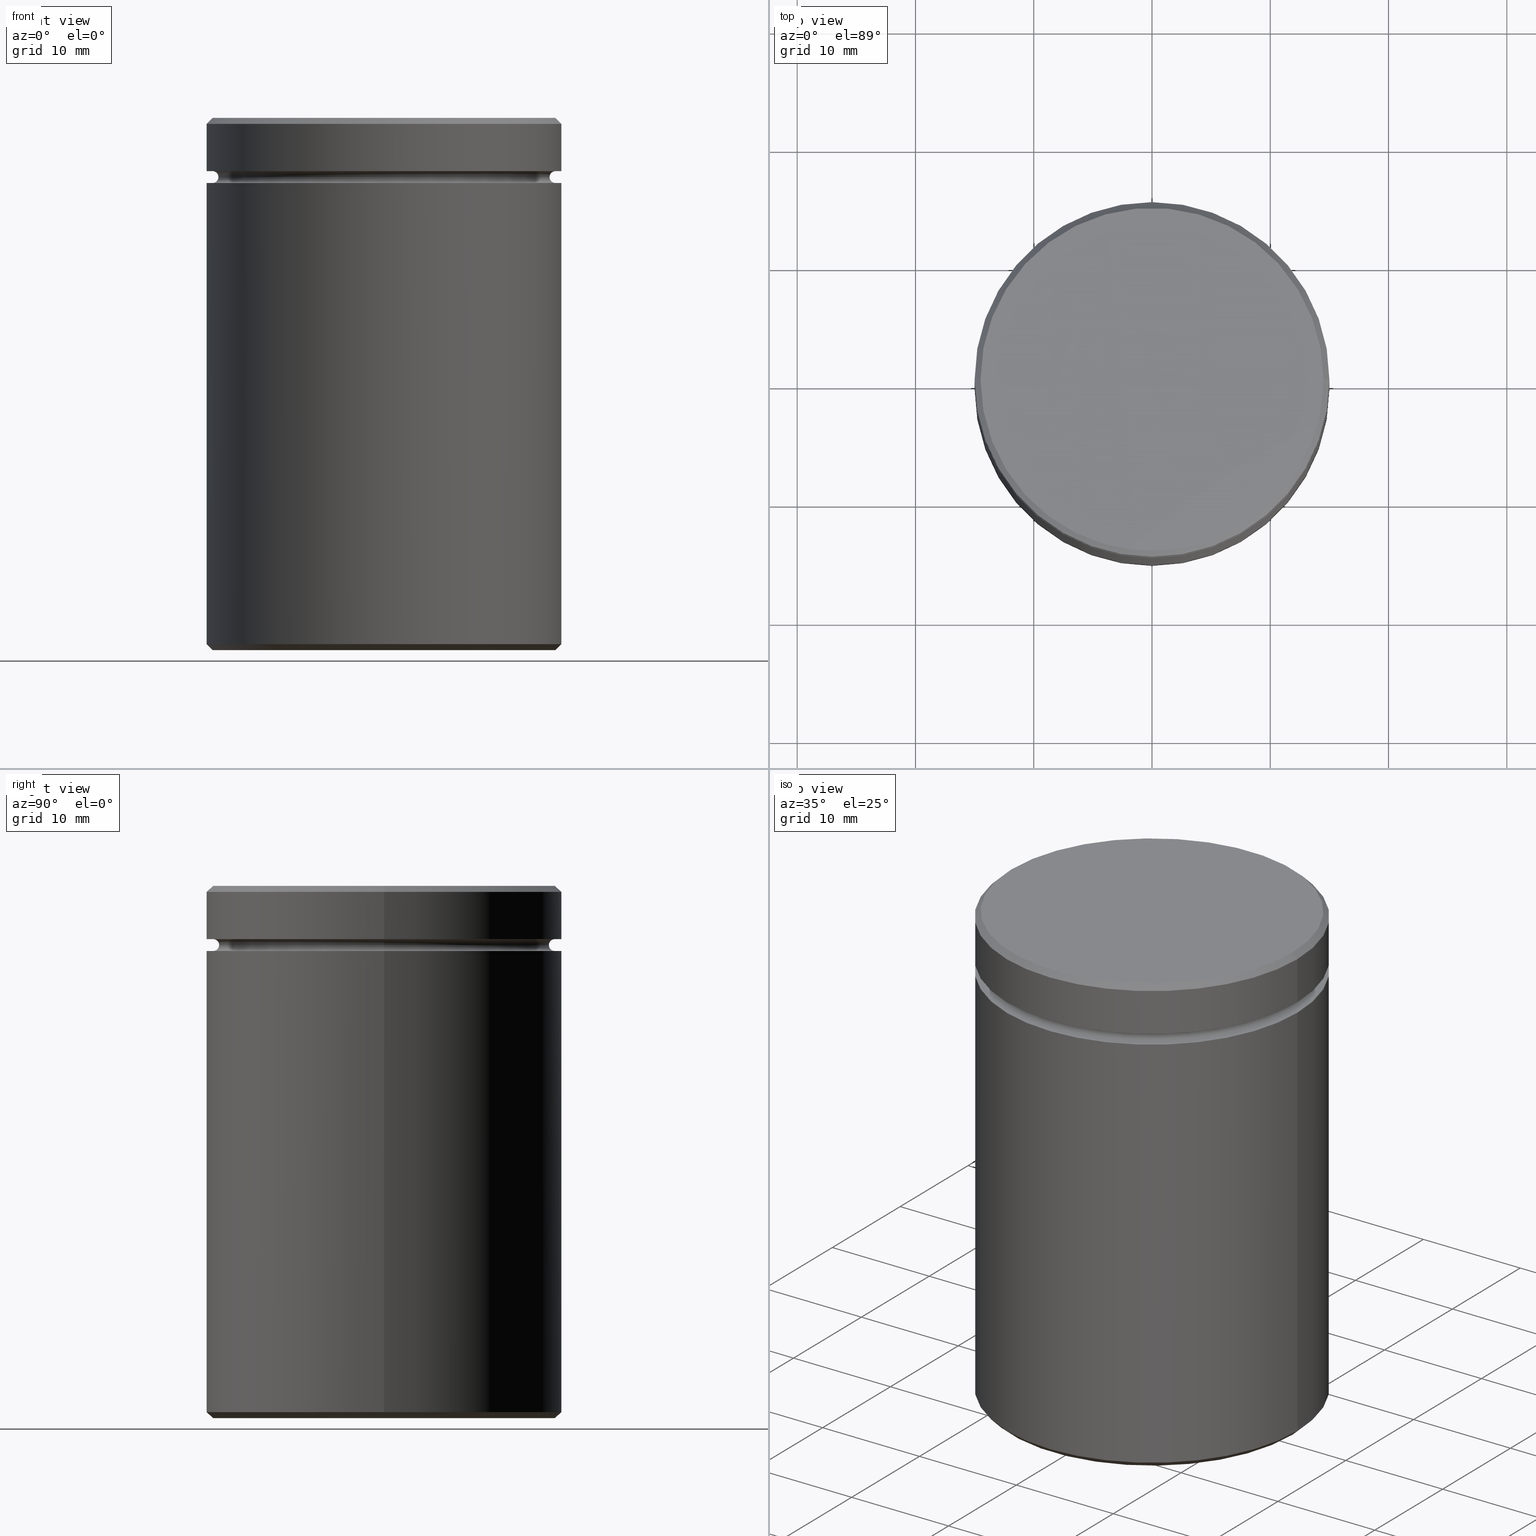
[diagram: canonical four-view strip — front | top / right | iso, engineering-drawing reading convention]
A machine part, canonical four-view strip (front | top / right | iso — engineering-drawing reading convention). The complete STEP part file that produces these views, byte-faithful:
ISO-10303-21;
HEADER;
FILE_DESCRIPTION (( 'STEP AP203' ),
    '1' );
FILE_NAME ('3bf1.STEP',
    '2024-01-02T17:58:12',
    ( '' ),
    ( '' ),
    'SwSTEP 2.0',
    'SolidWorks 2019',
    '' );
FILE_SCHEMA (( 'CONFIG_CONTROL_DESIGN' ));
ENDSEC;

DATA;
#1 = CARTESIAN_POINT ( 'NONE',  ( 0.000000000000000000, 0.000000000000000000, -15.99999999999999645 ) ) ;
#2 = ORIENTED_EDGE ( 'NONE', *, *, #353, .F. ) ;
#3 = PERSON_AND_ORGANIZATION_ROLE ( 'design_owner' ) ;
#4 = ORIENTED_EDGE ( 'NONE', *, *, #70, .T. ) ;
#5 = LOCAL_TIME ( 18, 58, 12.00000000000000000, #433 ) ;
#6 = EDGE_LOOP ( 'NONE', ( #202, #528, #8, #20 ) ) ;
#7 = CIRCLE ( 'NONE', #230, 0.5000000000000004441 ) ;
#8 = ORIENTED_EDGE ( 'NONE', *, *, #243, .T. ) ;
#9 = COORDINATED_UNIVERSAL_TIME_OFFSET ( 1, 0, .AHEAD. ) ;
#10 = CC_DESIGN_PERSON_AND_ORGANIZATION_ASSIGNMENT ( #368, #98, ( #81 ) ) ;
#11 = CARTESIAN_POINT ( 'NONE',  ( -15.00000000000000000, 1.836970198721029589E-15, 0.000000000000000000 ) ) ;
#12 = APPROVAL_STATUS ( 'not_yet_approved' ) ;
#13 = ORIENTED_EDGE ( 'NONE', *, *, #459, .T. ) ;
#14 = VECTOR ( 'NONE', #86, 1000.000000000000000 ) ;
#15 = CARTESIAN_POINT ( 'NONE',  ( -14.49999999999999822, 0.000000000000000000, -4.500000000000000888 ) ) ;
#16 = CIRCLE ( 'NONE', #568, 15.00000000000000000 ) ;
#17 = AXIS2_PLACEMENT_3D ( 'NONE', #325, #450, #192 ) ;
#18 = EDGE_LOOP ( 'NONE', ( #269, #275, #397, #60 ) ) ;
#19 = CARTESIAN_POINT ( 'NONE',  ( 0.000000000000000000, 0.000000000000000000, -0.4999999999999970024 ) ) ;
#20 = ORIENTED_EDGE ( 'NONE', *, *, #70, .F. ) ;
#21 = APPROVAL_DATE_TIME ( #503, #39 ) ;
#22 = ORIENTED_EDGE ( 'NONE', *, *, #556, .T. ) ;
#23 = CARTESIAN_POINT ( 'NONE',  ( 0.000000000000000000, 0.000000000000000000, -4.999999999999999112 ) ) ;
#24 = ADVANCED_FACE ( 'NONE', ( #494 ), #447, .T. ) ;
#25 = CARTESIAN_POINT ( 'NONE',  ( 0.000000000000000000, 0.000000000000000000, 0.000000000000000000 ) ) ;
#26 = VERTEX_POINT ( 'NONE', #501 ) ;
#27 = AXIS2_PLACEMENT_3D ( 'NONE', #55, #409, #200 ) ;
#28 = FACE_OUTER_BOUND ( 'NONE', #408, .T. ) ;
#29 = DIRECTION ( 'NONE',  ( 0.000000000000000000, -1.000000000000000000, 0.000000000000000000 ) ) ;
#30 = EDGE_CURVE ( 'NONE', #53, #129, #281, .T. ) ;
#31 = CARTESIAN_POINT ( 'NONE',  ( 10.00000000000000000, 1.224646799147353059E-15, -15.99999999999999645 ) ) ;
#32 = DIRECTION ( 'NONE',  ( -1.000000000000000000, 0.000000000000000000, 0.000000000000000000 ) ) ;
#33 = LINE ( 'NONE', #468, #483 ) ;
#34 = CARTESIAN_POINT ( 'NONE',  ( 15.00000000000000000, 0.000000000000000000, -4.500000000000000888 ) ) ;
#35 = AXIS2_PLACEMENT_3D ( 'NONE', #428, #465, #420 ) ;
#36 = DIRECTION ( 'NONE',  ( -1.000000000000000000, 0.000000000000000000, 0.000000000000000000 ) ) ;
#37 = CARTESIAN_POINT ( 'NONE',  ( 15.00000000000000000, 0.000000000000000000, 0.000000000000000000 ) ) ;
#38 = LOCAL_TIME ( 18, 58, 12.00000000000000000, #197 ) ;
#39 = APPROVAL ( #320, 'NEUR�EN�' ) ;
#40 = FACE_BOUND ( 'NONE', #418, .T. ) ;
#41 = DIRECTION ( 'NONE',  ( -0.000000000000000000, -0.000000000000000000, 1.000000000000000000 ) ) ;
#42 = APPROVAL_DATE_TIME ( #435, #315 ) ;
#43 = EDGE_LOOP ( 'NONE', ( #231, #51, #487, #227 ) ) ;
#44 = CARTESIAN_POINT ( 'NONE',  ( 0.000000000000000000, 0.000000000000000000, -4.500000000000000888 ) ) ;
#45 = AXIS2_PLACEMENT_3D ( 'NONE', #511, #293, #111 ) ;
#46 = CYLINDRICAL_SURFACE ( 'NONE', #510, 10.00000000000000000 ) ;
#47 = CIRCLE ( 'NONE', #399, 15.00000000000000000 ) ;
#48 = VERTEX_POINT ( 'NONE', #537 ) ;
#49 = ADVANCED_FACE ( 'NONE', ( #540 ), #62, .T. ) ;
#50 = ORIENTED_EDGE ( 'NONE', *, *, #359, .T. ) ;
#51 = ORIENTED_EDGE ( 'NONE', *, *, #274, .T. ) ;
#52 = AXIS2_PLACEMENT_3D ( 'NONE', #83, #518, #127 ) ;
#53 = VERTEX_POINT ( 'NONE', #370 ) ;
#54 = EDGE_CURVE ( 'NONE', #232, #53, #522, .T. ) ;
#55 = CARTESIAN_POINT ( 'NONE',  ( 0.000000000000000000, 0.000000000000000000, 0.000000000000000000 ) ) ;
#56 = LINE ( 'NONE', #234, #115 ) ;
#57 = EDGE_CURVE ( 'NONE', #456, #270, #490, .T. ) ;
#58 = VECTOR ( 'NONE', #160, 1000.000000000000000 ) ;
#59 = CARTESIAN_POINT ( 'NONE',  ( -14.49999999999999822, 1.775737858763662015E-15, -5.500000000000000000 ) ) ;
#60 = ORIENTED_EDGE ( 'NONE', *, *, #292, .F. ) ;
#61 = APPLICATION_CONTEXT ( 'configuration controlled 3d designs of mechanical parts and assemblies' ) ;
#62 = CYLINDRICAL_SURFACE ( 'NONE', #27, 15.00000000000000000 ) ;
#63 = DATE_AND_TIME ( #220, #406 ) ;
#64 = EDGE_LOOP ( 'NONE', ( #190, #305, #228, #206 ) ) ;
#65 = DIRECTION ( 'NONE',  ( -1.000000000000000000, 0.000000000000000000, 0.000000000000000000 ) ) ;
#66 = EDGE_LOOP ( 'NONE', ( #237, #449, #539, #196 ) ) ;
#67 = DIRECTION ( 'NONE',  ( -0.000000000000000000, -0.000000000000000000, 1.000000000000000000 ) ) ;
#68 = DIRECTION ( 'NONE',  ( 1.000000000000000000, 0.000000000000000000, 0.000000000000000000 ) ) ;
#69 = AXIS2_PLACEMENT_3D ( 'NONE', #461, #379, #76 ) ;
#70 = EDGE_CURVE ( 'NONE', #84, #354, #250, .T. ) ;
#71 = VECTOR ( 'NONE', #241, 1000.000000000000000 ) ;
#72 = DIRECTION ( 'NONE',  ( 0.000000000000000000, 0.000000000000000000, -1.000000000000000000 ) ) ;
#73 = CARTESIAN_POINT ( 'NONE',  ( 0.000000000000000000, 0.000000000000000000, -4.500000000000000888 ) ) ;
#74 = DIRECTION ( 'NONE',  ( -1.000000000000000000, 0.000000000000000000, 0.000000000000000000 ) ) ;
#75 = CARTESIAN_POINT ( 'NONE',  ( -10.00000000000000000, 0.000000000000000000, -45.00000000000000000 ) ) ;
#76 = DIRECTION ( 'NONE',  ( 1.000000000000000000, 0.000000000000000000, 0.000000000000000000 ) ) ;
#77 = CARTESIAN_POINT ( 'NONE',  ( 0.000000000000000000, 0.000000000000000000, -15.99999999999999645 ) ) ;
#78 = VECTOR ( 'NONE', #479, 1000.000000000000000 ) ;
#79 = CYLINDRICAL_SURFACE ( 'NONE', #35, 15.00000000000000000 ) ;
#80 = DIRECTION ( 'NONE',  ( 1.224646799147353207E-16, 1.000000000000000000, 0.000000000000000000 ) ) ;
#81 = SECURITY_CLASSIFICATION ( '', '', #499 ) ;
#82 =( NAMED_UNIT ( * ) SI_UNIT ( $, .STERADIAN. ) SOLID_ANGLE_UNIT ( ) );
#83 = CARTESIAN_POINT ( 'NONE',  ( 0.000000000000000000, 0.000000000000000000, -5.500000000000000000 ) ) ;
#84 = VERTEX_POINT ( 'NONE', #59 ) ;
#85 = MECHANICAL_CONTEXT ( 'NONE', #376, 'mechanical' ) ;
#86 = DIRECTION ( 'NONE',  ( -0.7071067811865463515, 0.000000000000000000, -0.7071067811865487940 ) ) ;
#87 = EDGE_LOOP ( 'NONE', ( #150, #324, #444, #314 ) ) ;
#88 = ADVANCED_FACE ( 'NONE', ( #143, #277 ), #319, .T. ) ;
#89 = AXIS2_PLACEMENT_3D ( 'NONE', #347, #41, #434 ) ;
#90 = CIRCLE ( 'NONE', #338, 15.00000000000000000 ) ;
#91 = AXIS2_PLACEMENT_3D ( 'NONE', #513, #381, #553 ) ;
#92 = ORIENTED_EDGE ( 'NONE', *, *, #243, .F. ) ;
#93 = ORIENTED_EDGE ( 'NONE', *, *, #30, .T. ) ;
#94 = EDGE_CURVE ( 'NONE', #268, #104, #56, .T. ) ;
#95 = VERTEX_POINT ( 'NONE', #15 ) ;
#96 = EDGE_CURVE ( 'NONE', #489, #551, #348, .T. ) ;
#97 = DIRECTION ( 'NONE',  ( -0.000000000000000000, -0.000000000000000000, 1.000000000000000000 ) ) ;
#98 = PERSON_AND_ORGANIZATION_ROLE ( 'classification_officer' ) ;
#99 = ORIENTED_EDGE ( 'NONE', *, *, #100, .T. ) ;
#100 = EDGE_CURVE ( 'NONE', #270, #366, #16, .T. ) ;
#101 = DIRECTION ( 'NONE',  ( 1.000000000000000000, 0.000000000000000000, 0.000000000000000000 ) ) ;
#102 = EDGE_LOOP ( 'NONE', ( #156, #22 ) ) ;
#103 = AXIS2_PLACEMENT_3D ( 'NONE', #391, #126, #133 ) ;
#104 = VERTEX_POINT ( 'NONE', #509 ) ;
#105 = ORIENTED_EDGE ( 'NONE', *, *, #342, .F. ) ;
#106 = CARTESIAN_POINT ( 'NONE',  ( 0.000000000000000000, 0.000000000000000000, -44.49999999999998579 ) ) ;
#107 = ORIENTED_EDGE ( 'NONE', *, *, #393, .F. ) ;
#108 = CARTESIAN_POINT ( 'NONE',  ( 0.000000000000000000, 0.000000000000000000, -45.00000000000000000 ) ) ;
#109 = DIRECTION ( 'NONE',  ( 1.000000000000000000, 0.000000000000000000, 0.000000000000000000 ) ) ;
#110 = EDGE_CURVE ( 'NONE', #331, #266, #90, .T. ) ;
#111 = DIRECTION ( 'NONE',  ( 1.000000000000000000, 0.000000000000000000, 0.000000000000000000 ) ) ;
#112 = FACE_OUTER_BOUND ( 'NONE', #147, .T. ) ;
#113 = AXIS2_PLACEMENT_3D ( 'NONE', #263, #80, #527 ) ;
#114 = AXIS2_PLACEMENT_3D ( 'NONE', #439, #564, #302 ) ;
#115 = VECTOR ( 'NONE', #410, 999.9999999999998863 ) ;
#116 = DIRECTION ( 'NONE',  ( 1.000000000000000000, 0.000000000000000000, 0.000000000000000000 ) ) ;
#117 = CARTESIAN_POINT ( 'NONE',  ( 0.000000000000000000, 13.99999999999999822, -5.500000000000000000 ) ) ;
#118 = CARTESIAN_POINT ( 'NONE',  ( -15.00000000000000000, 1.836970198721029589E-15, -44.49999999999998579 ) ) ;
#119 = DIRECTION ( 'NONE',  ( 1.000000000000000000, 0.000000000000000000, 0.000000000000000000 ) ) ;
#120 = CARTESIAN_POINT ( 'NONE',  ( -15.00000000000000000, 1.836970198721029589E-15, -44.49999999999998579 ) ) ;
#121 = LINE ( 'NONE', #482, #557 ) ;
#122 = VECTOR ( 'NONE', #165, 1000.000000000000000 ) ;
#123 = DIRECTION ( 'NONE',  ( 0.000000000000000000, 0.000000000000000000, -1.000000000000000000 ) ) ;
#124 = AXIS2_PLACEMENT_3D ( 'NONE', #106, #154, #560 ) ;
#125 = DIRECTION ( 'NONE',  ( 0.000000000000000000, 0.000000000000000000, -1.000000000000000000 ) ) ;
#126 = DIRECTION ( 'NONE',  ( 0.000000000000000000, 0.000000000000000000, 1.000000000000000000 ) ) ;
#127 = DIRECTION ( 'NONE',  ( 1.000000000000000000, 0.000000000000000000, 0.000000000000000000 ) ) ;
#128 = EDGE_CURVE ( 'NONE', #456, #104, #47, .T. ) ;
#129 = VERTEX_POINT ( 'NONE', #75 ) ;
#130 = DIRECTION ( 'NONE',  ( -1.000000000000000000, 0.000000000000000000, -0.000000000000000000 ) ) ;
#131 = ORIENTED_EDGE ( 'NONE', *, *, #128, .F. ) ;
#132 = AXIS2_PLACEMENT_3D ( 'NONE', #219, #442, #130 ) ;
#133 = DIRECTION ( 'NONE',  ( 1.000000000000000000, 0.000000000000000000, 0.000000000000000000 ) ) ;
#134 = AXIS2_PLACEMENT_3D ( 'NONE', #516, #383, #425 ) ;
#135 = AXIS2_PLACEMENT_3D ( 'NONE', #248, #29, #208 ) ;
#136 = LOCAL_TIME ( 18, 58, 12.00000000000000000, #9 ) ;
#137 = ORIENTED_EDGE ( 'NONE', *, *, #520, .T. ) ;
#138 = EDGE_CURVE ( 'NONE', #354, #84, #485, .T. ) ;
#139 = ORIENTED_EDGE ( 'NONE', *, *, #467, .T. ) ;
#140 = ORIENTED_EDGE ( 'NONE', *, *, #280, .T. ) ;
#141 = PRODUCT_DEFINITION_SHAPE ( 'NONE', 'NONE',  #451 ) ;
#142 = CIRCLE ( 'NONE', #396, 14.49999999999999822 ) ;
#143 = FACE_BOUND ( 'NONE', #102, .T. ) ;
#144 = CARTESIAN_POINT ( 'NONE',  ( 0.000000000000000000, 0.000000000000000000, -15.99999999999999645 ) ) ;
#145 = EDGE_CURVE ( 'NONE', #95, #534, #259, .T. ) ;
#146 = EDGE_LOOP ( 'NONE', ( #445, #358 ) ) ;
#147 = EDGE_LOOP ( 'NONE', ( #457, #448, #443, #131 ) ) ;
#148 = DIRECTION ( 'NONE',  ( 1.000000000000000000, 0.000000000000000000, 0.000000000000000000 ) ) ;
#149 = CIRCLE ( 'NONE', #385, 14.49999999999999112 ) ;
#150 = ORIENTED_EDGE ( 'NONE', *, *, #54, .F. ) ;
#151 = APPROVAL_PERSON_ORGANIZATION ( #235, #39, #535 ) ;
#152 = ADVANCED_FACE ( 'NONE', ( #112 ), #412, .T. ) ;
#153 = LINE ( 'NONE', #31, #122 ) ;
#154 = DIRECTION ( 'NONE',  ( -0.000000000000000000, -0.000000000000000000, 1.000000000000000000 ) ) ;
#155 = PRODUCT ( '3bf1', '3bf1', '', ( #85 ) ) ;
#156 = ORIENTED_EDGE ( 'NONE', *, *, #145, .T. ) ;
#157 = DIRECTION ( 'NONE',  ( -0.7071067811865439090, 8.659560562354888485E-17, 0.7071067811865512365 ) ) ;
#158 = DESIGN_CONTEXT ( 'detailed design', #61, 'design' ) ;
#159 = DIRECTION ( 'NONE',  ( 1.000000000000000000, 0.000000000000000000, 0.000000000000000000 ) ) ;
#160 = DIRECTION ( 'NONE',  ( -0.000000000000000000, -0.000000000000000000, 1.000000000000000000 ) ) ;
#161 = PLANE ( 'NONE',  #559 ) ;
#162 = AXIS2_PLACEMENT_3D ( 'NONE', #395, #174, #214 ) ;
#163 = AXIS2_PLACEMENT_3D ( 'NONE', #25, #295, #119 ) ;
#164 = AXIS2_PLACEMENT_3D ( 'NONE', #463, #432, #549 ) ;
#165 = DIRECTION ( 'NONE',  ( -0.000000000000000000, -0.000000000000000000, -1.000000000000000000 ) ) ;
#166 = DIRECTION ( 'NONE',  ( 0.000000000000000000, 0.000000000000000000, -1.000000000000000000 ) ) ;
#167 = CARTESIAN_POINT ( 'NONE',  ( 15.00000000000000000, 0.000000000000000000, -5.500000000000000000 ) ) ;
#168 = DIRECTION ( 'NONE',  ( -1.000000000000000000, 0.000000000000000000, 0.000000000000000000 ) ) ;
#169 =( NAMED_UNIT ( * ) PLANE_ANGLE_UNIT ( ) SI_UNIT ( $, .RADIAN. ) );
#170 = FACE_OUTER_BOUND ( 'NONE', #87, .T. ) ;
#171 = CIRCLE ( 'NONE', #52, 15.00000000000000000 ) ;
#172 = PERSON_AND_ORGANIZATION ( #286, #431 ) ;
#173 = CC_DESIGN_PERSON_AND_ORGANIZATION_ASSIGNMENT ( #545, #194, ( #229 ) ) ;
#174 = DIRECTION ( 'NONE',  ( -0.000000000000000000, -0.000000000000000000, 1.000000000000000000 ) ) ;
#175 = EDGE_LOOP ( 'NONE', ( #308, #221, #139, #356 ) ) ;
#176 = DIRECTION ( 'NONE',  ( -0.000000000000000000, -0.000000000000000000, 1.000000000000000000 ) ) ;
#177 = FACE_OUTER_BOUND ( 'NONE', #43, .T. ) ;
#178 = ORIENTED_EDGE ( 'NONE', *, *, #563, .F. ) ;
#179 = DIRECTION ( 'NONE',  ( -1.000000000000000000, 0.000000000000000000, 0.000000000000000000 ) ) ;
#180 = ORIENTED_EDGE ( 'NONE', *, *, #138, .T. ) ;
#181 = EDGE_CURVE ( 'NONE', #441, #95, #7, .T. ) ;
#182 = CIRCLE ( 'NONE', #69, 15.00000000000000000 ) ;
#183 = AXIS2_PLACEMENT_3D ( 'NONE', #452, #498, #276 ) ;
#184 = ORIENTED_EDGE ( 'NONE', *, *, #563, .T. ) ;
#185 = ADVANCED_BREP_SHAPE_REPRESENTATION ( '3bf1', ( #355, #103 ), #464 ) ;
#186 = EDGE_CURVE ( 'NONE', #484, #129, #512, .T. ) ;
#187 = EDGE_LOOP ( 'NONE', ( #372, #105, #93, #184 ) ) ;
#188 = DIRECTION ( 'NONE',  ( 0.000000000000000000, 0.000000000000000000, -1.000000000000000000 ) ) ;
#189 = DATE_AND_TIME ( #492, #38 ) ;
#190 = ORIENTED_EDGE ( 'NONE', *, *, #438, .T. ) ;
#191 = EDGE_CURVE ( 'NONE', #26, #48, #300, .T. ) ;
#192 = DIRECTION ( 'NONE',  ( -1.000000000000000000, 0.000000000000000000, 0.000000000000000000 ) ) ;
#193 = AXIS2_PLACEMENT_3D ( 'NONE', #421, #212, #68 ) ;
#194 = PERSON_AND_ORGANIZATION_ROLE ( 'design_supplier' ) ;
#195 = ORIENTED_EDGE ( 'NONE', *, *, #57, .F. ) ;
#196 = ORIENTED_EDGE ( 'NONE', *, *, #94, .F. ) ;
#197 = COORDINATED_UNIVERSAL_TIME_OFFSET ( 1, 0, .AHEAD. ) ;
#198 = ORIENTED_EDGE ( 'NONE', *, *, #96, .T. ) ;
#199 = CARTESIAN_POINT ( 'NONE',  ( 0.000000000000000000, 0.000000000000000000, -5.500000000000000000 ) ) ;
#200 = DIRECTION ( 'NONE',  ( 1.000000000000000000, 0.000000000000000000, 0.000000000000000000 ) ) ;
#201 = CC_DESIGN_PERSON_AND_ORGANIZATION_ASSIGNMENT ( #394, #565, ( #451 ) ) ;
#202 = ORIENTED_EDGE ( 'NONE', *, *, #280, .F. ) ;
#203 = CYLINDRICAL_SURFACE ( 'NONE', #440, 15.00000000000000000 ) ;
#204 = DIRECTION ( 'NONE',  ( -0.000000000000000000, -0.000000000000000000, 1.000000000000000000 ) ) ;
#205 = ADVANCED_FACE ( 'NONE', ( #337 ), #288, .T. ) ;
#206 = ORIENTED_EDGE ( 'NONE', *, *, #181, .F. ) ;
#207 = DIRECTION ( 'NONE',  ( -0.000000000000000000, -0.000000000000000000, 1.000000000000000000 ) ) ;
#208 = DIRECTION ( 'NONE',  ( 0.000000000000000000, 0.000000000000000000, -1.000000000000000000 ) ) ;
#209 = CARTESIAN_POINT ( 'NONE',  ( 0.000000000000000000, 0.000000000000000000, -44.49999999999998579 ) ) ;
#210 = CARTESIAN_POINT ( 'NONE',  ( 10.00000000000000000, 1.224646799147353059E-15, -15.99999999999999645 ) ) ;
#211 = CARTESIAN_POINT ( 'NONE',  ( 13.99999999999999822, 0.000000000000000000, -4.999999999999999112 ) ) ;
#212 = DIRECTION ( 'NONE',  ( 0.000000000000000000, 0.000000000000000000, -1.000000000000000000 ) ) ;
#213 = AXIS2_PLACEMENT_3D ( 'NONE', #427, #166, #32 ) ;
#214 = DIRECTION ( 'NONE',  ( 1.000000000000000000, 0.000000000000000000, 0.000000000000000000 ) ) ;
#215 = CARTESIAN_POINT ( 'NONE',  ( -14.50000000000000355, 0.000000000000000000, 0.000000000000000000 ) ) ;
#216 = CALENDAR_DATE ( 2024, 2, 1 ) ;
#217 = DIRECTION ( 'NONE',  ( 0.000000000000000000, 0.000000000000000000, -1.000000000000000000 ) ) ;
#218 = ADVANCED_FACE ( 'NONE', ( #458 ), #330, .F. ) ;
#219 = CARTESIAN_POINT ( 'NONE',  ( 0.000000000000000000, 15.00000000000000000, -45.00000000000000000 ) ) ;
#220 = CALENDAR_DATE ( 2024, 2, 1 ) ;
#221 = ORIENTED_EDGE ( 'NONE', *, *, #110, .T. ) ;
#222 = CIRCLE ( 'NONE', #423, 10.00000000000000000 ) ;
#223 = COORDINATED_UNIVERSAL_TIME_OFFSET ( 1, 0, .AHEAD. ) ;
#224 = LINE ( 'NONE', #215, #14 ) ;
#225 = ORIENTED_EDGE ( 'NONE', *, *, #462, .T. ) ;
#226 = EDGE_CURVE ( 'NONE', #48, #26, #312, .T. ) ;
#227 = ORIENTED_EDGE ( 'NONE', *, *, #556, .F. ) ;
#228 = ORIENTED_EDGE ( 'NONE', *, *, #145, .F. ) ;
#229 = PRODUCT_DEFINITION_FORMATION_WITH_SPECIFIED_SOURCE ( 'LIBOVOLN�', '', #155, .NOT_KNOWN. ) ;
#230 = AXIS2_PLACEMENT_3D ( 'NONE', #507, #328, #543 ) ;
#231 = ORIENTED_EDGE ( 'NONE', *, *, #233, .F. ) ;
#232 = VERTEX_POINT ( 'NONE', #210 ) ;
#233 = EDGE_CURVE ( 'NONE', #546, #534, #413, .T. ) ;
#234 = CARTESIAN_POINT ( 'NONE',  ( 15.00000000000000000, 0.000000000000000000, -44.49999999999998579 ) ) ;
#235 = PERSON_AND_ORGANIZATION ( #286, #431 ) ;
#236 = TOROIDAL_SURFACE ( 'NONE', #267, 14.49999999999999822, 0.5000000000000000000 ) ;
#237 = ORIENTED_EDGE ( 'NONE', *, *, #529, .F. ) ;
#238 = AXIS2_PLACEMENT_3D ( 'NONE', #245, #375, #159 ) ;
#239 = CC_DESIGN_APPROVAL ( #39, ( #81 ) ) ;
#240 = SHAPE_DEFINITION_REPRESENTATION ( #141, #185 ) ;
#241 = DIRECTION ( 'NONE',  ( -0.000000000000000000, -0.000000000000000000, -1.000000000000000000 ) ) ;
#242 = CC_DESIGN_DATE_AND_TIME_ASSIGNMENT ( #326, #371, ( #81 ) ) ;
#243 = EDGE_CURVE ( 'NONE', #546, #354, #388, .T. ) ;
#244 = PERSON_AND_ORGANIZATION_ROLE ( 'creator' ) ;
#245 = CARTESIAN_POINT ( 'NONE',  ( 0.000000000000000000, 0.000000000000000000, 0.000000000000000000 ) ) ;
#246 = EDGE_LOOP ( 'NONE', ( #2, #437, #460, #107 ) ) ;
#247 = CARTESIAN_POINT ( 'NONE',  ( 0.000000000000000000, 0.000000000000000000, 0.000000000000000000 ) ) ;
#248 = CARTESIAN_POINT ( 'NONE',  ( 14.49999999999999822, 0.000000000000000000, -4.999999999999999112 ) ) ;
#249 = TOROIDAL_SURFACE ( 'NONE', #530, 14.49999999999999822, 0.5000000000000000000 ) ;
#250 = CIRCLE ( 'NONE', #547, 14.49999999999999822 ) ;
#251 = CARTESIAN_POINT ( 'NONE',  ( -13.99999999999999822, 1.745121688784978228E-15, -4.999999999999999112 ) ) ;
#252 = DIRECTION ( 'NONE',  ( 1.000000000000000000, 0.000000000000000000, 0.000000000000000000 ) ) ;
#253 = ADVANCED_FACE ( 'NONE', ( #255 ), #429, .T. ) ;
#254 = FACE_OUTER_BOUND ( 'NONE', #175, .T. ) ;
#255 = FACE_OUTER_BOUND ( 'NONE', #569, .T. ) ;
#256 = DIRECTION ( 'NONE',  ( -1.000000000000000000, 0.000000000000000000, 0.000000000000000000 ) ) ;
#257 = DIRECTION ( 'NONE',  ( -1.000000000000000000, 0.000000000000000000, 0.000000000000000000 ) ) ;
#258 = APPROVAL_PERSON_ORGANIZATION ( #523, #315, #400 ) ;
#259 = CIRCLE ( 'NONE', #134, 14.49999999999999822 ) ;
#260 = DIRECTION ( 'NONE',  ( -0.000000000000000000, -0.000000000000000000, -1.000000000000000000 ) ) ;
#261 = ADVANCED_FACE ( 'NONE', ( #466, #555 ), #161, .T. ) ;
#262 = APPROVAL_STATUS ( 'not_yet_approved' ) ;
#263 = CARTESIAN_POINT ( 'NONE',  ( -14.49999999999999822, 1.775737858763662015E-15, -4.999999999999999112 ) ) ;
#264 = ORIENTED_EDGE ( 'NONE', *, *, #438, .F. ) ;
#265 = DIRECTION ( 'NONE',  ( 0.000000000000000000, 0.000000000000000000, -1.000000000000000000 ) ) ;
#266 = VERTEX_POINT ( 'NONE', #34 ) ;
#267 = AXIS2_PLACEMENT_3D ( 'NONE', #23, #382, #384 ) ;
#268 = VERTEX_POINT ( 'NONE', #474 ) ;
#269 = ORIENTED_EDGE ( 'NONE', *, *, #422, .T. ) ;
#270 = VERTEX_POINT ( 'NONE', #352 ) ;
#271 = AXIS2_PLACEMENT_3D ( 'NONE', #209, #374, #36 ) ;
#272 = AXIS2_PLACEMENT_3D ( 'NONE', #144, #322, #416 ) ;
#273 = CARTESIAN_POINT ( 'NONE',  ( 0.000000000000000000, 0.000000000000000000, -5.500000000000000000 ) ) ;
#274 = EDGE_CURVE ( 'NONE', #546, #441, #486, .T. ) ;
#275 = ORIENTED_EDGE ( 'NONE', *, *, #57, .T. ) ;
#276 = DIRECTION ( 'NONE',  ( -1.000000000000000000, 0.000000000000000000, -0.000000000000000000 ) ) ;
#277 = FACE_OUTER_BOUND ( 'NONE', #508, .T. ) ;
#278 = EDGE_LOOP ( 'NONE', ( #180, #4 ) ) ;
#279 = CIRCLE ( 'NONE', #113, 0.5000000000000004441 ) ;
#280 = EDGE_CURVE ( 'NONE', #441, #84, #279, .T. ) ;
#281 = LINE ( 'NONE', #362, #71 ) ;
#282 = APPROVAL_ROLE ( '' ) ;
#283 = EDGE_CURVE ( 'NONE', #26, #489, #224, .T. ) ;
#284 = EDGE_LOOP ( 'NONE', ( #195, #531, #360, #351 ) ) ;
#285 = CARTESIAN_POINT ( 'NONE',  ( 0.000000000000000000, 0.000000000000000000, -44.49999999999998579 ) ) ;
#286 = PERSON ( 'NEUR�EN�', 'NEUR�EN�', 'NEUR�EN�', ('NEUR�EN�'), ('NEUR�EN�'), ('NEUR�EN�') ) ;
#287 = DIRECTION ( 'NONE',  ( -1.000000000000000000, 0.000000000000000000, 0.000000000000000000 ) ) ;
#288 = CYLINDRICAL_SURFACE ( 'NONE', #339, 15.00000000000000000 ) ;
#289 = DIRECTION ( 'NONE',  ( -0.000000000000000000, -0.000000000000000000, 1.000000000000000000 ) ) ;
#290 = CARTESIAN_POINT ( 'NONE',  ( 0.000000000000000000, 0.000000000000000000, 0.000000000000000000 ) ) ;
#291 = TOROIDAL_SURFACE ( 'NONE', #162, 14.49999999999999822, 0.5000000000000000000 ) ;
#292 = EDGE_CURVE ( 'NONE', #104, #366, #567, .T. ) ;
#293 = DIRECTION ( 'NONE',  ( 0.000000000000000000, 0.000000000000000000, -1.000000000000000000 ) ) ;
#294 = DIRECTION ( 'NONE',  ( 1.000000000000000000, 0.000000000000000000, 0.000000000000000000 ) ) ;
#295 = DIRECTION ( 'NONE',  ( -0.000000000000000000, -0.000000000000000000, 1.000000000000000000 ) ) ;
#296 = DIRECTION ( 'NONE',  ( 0.000000000000000000, 0.000000000000000000, -1.000000000000000000 ) ) ;
#297 = CC_DESIGN_DATE_AND_TIME_ASSIGNMENT ( #63, #323, ( #451 ) ) ;
#298 = DIRECTION ( 'NONE',  ( -1.000000000000000000, 0.000000000000000000, -0.000000000000000000 ) ) ;
#299 = AXIS2_PLACEMENT_3D ( 'NONE', #340, #207, #472 ) ;
#300 = CIRCLE ( 'NONE', #163, 14.50000000000000355 ) ;
#301 = APPLICATION_PROTOCOL_DEFINITION ( 'international standard', 'config_control_design', 1994, #376 ) ;
#302 = DIRECTION ( 'NONE',  ( 1.000000000000000000, 0.000000000000000000, 0.000000000000000000 ) ) ;
#303 = CARTESIAN_POINT ( 'NONE',  ( 0.000000000000000000, 0.000000000000000000, -45.00000000000000000 ) ) ;
#304 = CARTESIAN_POINT ( 'NONE',  ( -15.00000000000000000, 1.836970198721029589E-15, -4.500000000000000888 ) ) ;
#305 = ORIENTED_EDGE ( 'NONE', *, *, #233, .T. ) ;
#306 = DIRECTION ( 'NONE',  ( -1.000000000000000000, 0.000000000000000000, 0.000000000000000000 ) ) ;
#307 = FACE_OUTER_BOUND ( 'NONE', #146, .T. ) ;
#308 = ORIENTED_EDGE ( 'NONE', *, *, #459, .F. ) ;
#309 = TOROIDAL_SURFACE ( 'NONE', #491, 14.49999999999999822, 0.5000000000000000000 ) ;
#310 = ADVANCED_FACE ( 'NONE', ( #170 ), #46, .F. ) ;
#311 = CLOSED_SHELL ( 'NONE', ( #378, #361, #334, #387, #310, #495, #205, #550, #253, #536, #88, #261, #49, #218, #343, #24, #152, #488, #346 ) ) ;
#312 = CIRCLE ( 'NONE', #238, 14.50000000000000355 ) ;
#313 = ORIENTED_EDGE ( 'NONE', *, *, #186, .F. ) ;
#314 = ORIENTED_EDGE ( 'NONE', *, *, #30, .F. ) ;
#315 = APPROVAL ( #262, 'NEUR�EN�' ) ;
#316 = EDGE_LOOP ( 'NONE', ( #264, #140, #480, #92 ) ) ;
#317 = PERSON_AND_ORGANIZATION ( #286, #431 ) ;
#318 = AXIS2_PLACEMENT_3D ( 'NONE', #108, #426, #256 ) ;
#319 = PLANE ( 'NONE',  #183 ) ;
#320 = APPROVAL_STATUS ( 'not_yet_approved' ) ;
#321 = ORIENTED_EDGE ( 'NONE', *, *, #283, .F. ) ;
#322 = DIRECTION ( 'NONE',  ( 0.000000000000000000, 0.000000000000000000, -1.000000000000000000 ) ) ;
#323 = DATE_TIME_ROLE ( 'creation_date' ) ;
#324 = ORIENTED_EDGE ( 'NONE', *, *, #407, .T. ) ;
#325 = CARTESIAN_POINT ( 'NONE',  ( 0.000000000000000000, 0.000000000000000000, 0.000000000000000000 ) ) ;
#326 = DATE_AND_TIME ( #496, #357 ) ;
#327 = CC_DESIGN_APPROVAL ( #315, ( #451 ) ) ;
#328 = DIRECTION ( 'NONE',  ( -0.000000000000000000, -1.000000000000000000, -0.000000000000000000 ) ) ;
#329 = CARTESIAN_POINT ( 'NONE',  ( 10.00000000000000000, 1.224646799147353059E-15, -45.00000000000000000 ) ) ;
#330 = CYLINDRICAL_SURFACE ( 'NONE', #455, 10.00000000000000000 ) ;
#331 = VERTEX_POINT ( 'NONE', #304 ) ;
#332 = CARTESIAN_POINT ( 'NONE',  ( 0.000000000000000000, 0.000000000000000000, -45.00000000000000000 ) ) ;
#333 = DIRECTION ( 'NONE',  ( -0.000000000000000000, -0.000000000000000000, 1.000000000000000000 ) ) ;
#334 = ADVANCED_FACE ( 'NONE', ( #562 ), #502, .T. ) ;
#335 = CARTESIAN_POINT ( 'NONE',  ( 0.000000000000000000, 0.000000000000000000, 0.000000000000000000 ) ) ;
#336 = VECTOR ( 'NONE', #157, 999.9999999999998863 ) ;
#337 = FACE_OUTER_BOUND ( 'NONE', #417, .T. ) ;
#338 = AXIS2_PLACEMENT_3D ( 'NONE', #73, #369, #148 ) ;
#339 = AXIS2_PLACEMENT_3D ( 'NONE', #290, #204, #471 ) ;
#340 = CARTESIAN_POINT ( 'NONE',  ( 0.000000000000000000, 0.000000000000000000, -4.999999999999999112 ) ) ;
#341 = DIRECTION ( 'NONE',  ( -0.000000000000000000, -0.000000000000000000, -1.000000000000000000 ) ) ;
#342 = EDGE_CURVE ( 'NONE', #53, #232, #222, .T. ) ;
#343 = ADVANCED_FACE ( 'NONE', ( #307 ), #521, .T. ) ;
#344 = LINE ( 'NONE', #118, #336 ) ;
#345 = CARTESIAN_POINT ( 'NONE',  ( 14.49999999999999822, 0.000000000000000000, -5.500000000000000000 ) ) ;
#346 = ADVANCED_FACE ( 'NONE', ( #177 ), #249, .F. ) ;
#347 = CARTESIAN_POINT ( 'NONE',  ( 0.000000000000000000, 0.000000000000000000, -44.49999999999998579 ) ) ;
#348 = CIRCLE ( 'NONE', #475, 15.00000000000000000 ) ;
#349 = APPLICATION_PROTOCOL_DEFINITION ( 'international standard', 'config_control_design', 1994, #61 ) ;
#350 = DIRECTION ( 'NONE',  ( -1.000000000000000000, 0.000000000000000000, 0.000000000000000000 ) ) ;
#351 = ORIENTED_EDGE ( 'NONE', *, *, #100, .F. ) ;
#352 = CARTESIAN_POINT ( 'NONE',  ( -15.00000000000000000, 1.836970198721029589E-15, -5.500000000000000000 ) ) ;
#353 = EDGE_CURVE ( 'NONE', #48, #551, #121, .T. ) ;
#354 = VERTEX_POINT ( 'NONE', #345 ) ;
#355 = MANIFOLD_SOLID_BREP ( 'Zaoblit1', #311 ) ;
#356 = ORIENTED_EDGE ( 'NONE', *, *, #393, .T. ) ;
#357 = LOCAL_TIME ( 18, 58, 12.00000000000000000, #419 ) ;
#358 = ORIENTED_EDGE ( 'NONE', *, *, #54, .T. ) ;
#359 = EDGE_CURVE ( 'NONE', #366, #270, #171, .T. ) ;
#360 = ORIENTED_EDGE ( 'NONE', *, *, #292, .T. ) ;
#361 = ADVANCED_FACE ( 'NONE', ( #436 ), #291, .F. ) ;
#362 = CARTESIAN_POINT ( 'NONE',  ( -10.00000000000000000, 0.000000000000000000, -15.99999999999999645 ) ) ;
#363 = CIRCLE ( 'NONE', #318, 14.49999999999999112 ) ;
#364 = ORIENTED_EDGE ( 'NONE', *, *, #353, .T. ) ;
#365 = PERSON_AND_ORGANIZATION ( #286, #431 ) ;
#366 = VERTEX_POINT ( 'NONE', #167 ) ;
#367 = ORIENTED_EDGE ( 'NONE', *, *, #462, .F. ) ;
#368 = PERSON_AND_ORGANIZATION ( #286, #431 ) ;
#369 = DIRECTION ( 'NONE',  ( -0.000000000000000000, -0.000000000000000000, 1.000000000000000000 ) ) ;
#370 = CARTESIAN_POINT ( 'NONE',  ( -10.00000000000000000, 0.000000000000000000, -15.99999999999999645 ) ) ;
#371 = DATE_TIME_ROLE ( 'classification_date' ) ;
#372 = ORIENTED_EDGE ( 'NONE', *, *, #407, .F. ) ;
#373 = CIRCLE ( 'NONE', #271, 15.00000000000000000 ) ;
#374 = DIRECTION ( 'NONE',  ( -0.000000000000000000, -0.000000000000000000, 1.000000000000000000 ) ) ;
#375 = DIRECTION ( 'NONE',  ( -0.000000000000000000, -0.000000000000000000, 1.000000000000000000 ) ) ;
#376 = APPLICATION_CONTEXT ( 'configuration controlled 3d designs of mechanical parts and assemblies' ) ;
#377 = VERTEX_POINT ( 'NONE', #424 ) ;
#378 = ADVANCED_FACE ( 'NONE', ( #470 ), #309, .F. ) ;
#379 = DIRECTION ( 'NONE',  ( -0.000000000000000000, -0.000000000000000000, 1.000000000000000000 ) ) ;
#380 = UNCERTAINTY_MEASURE_WITH_UNIT (LENGTH_MEASURE( 1.000000000000000082E-05 ), #481, 'distance_accuracy_value', 'NONE');
#381 = DIRECTION ( 'NONE',  ( 0.000000000000000000, -0.000000000000000000, 1.000000000000000000 ) ) ;
#382 = DIRECTION ( 'NONE',  ( -0.000000000000000000, -0.000000000000000000, 1.000000000000000000 ) ) ;
#383 = DIRECTION ( 'NONE',  ( -0.000000000000000000, -0.000000000000000000, 1.000000000000000000 ) ) ;
#384 = DIRECTION ( 'NONE',  ( 1.000000000000000000, 0.000000000000000000, 0.000000000000000000 ) ) ;
#385 = AXIS2_PLACEMENT_3D ( 'NONE', #332, #296, #74 ) ;
#386 = DIRECTION ( 'NONE',  ( 0.000000000000000000, 0.000000000000000000, -1.000000000000000000 ) ) ;
#387 = ADVANCED_FACE ( 'NONE', ( #28 ), #446, .T. ) ;
#388 = CIRCLE ( 'NONE', #135, 0.5000000000000004441 ) ;
#389 = CARTESIAN_POINT ( 'NONE',  ( -15.00000000000000000, 1.836970198721029589E-15, -0.4999999999999970024 ) ) ;
#390 = CARTESIAN_POINT ( 'NONE',  ( 0.000000000000000000, 0.000000000000000000, -15.99999999999999645 ) ) ;
#391 = CARTESIAN_POINT ( 'NONE',  ( 0.000000000000000000, 0.000000000000000000, 0.000000000000000000 ) ) ;
#392 = CARTESIAN_POINT ( 'NONE',  ( 0.000000000000000000, 0.000000000000000000, -15.99999999999999645 ) ) ;
#393 = EDGE_CURVE ( 'NONE', #551, #489, #566, .T. ) ;
#394 = PERSON_AND_ORGANIZATION ( #286, #431 ) ;
#395 = CARTESIAN_POINT ( 'NONE',  ( 0.000000000000000000, 0.000000000000000000, -4.999999999999999112 ) ) ;
#396 = AXIS2_PLACEMENT_3D ( 'NONE', #44, #176, #306 ) ;
#397 = ORIENTED_EDGE ( 'NONE', *, *, #359, .F. ) ;
#398 = APPROVAL_PERSON_ORGANIZATION ( #317, #514, #282 ) ;
#399 = AXIS2_PLACEMENT_3D ( 'NONE', #285, #505, #257 ) ;
#400 = APPROVAL_ROLE ( '' ) ;
#401 = CC_DESIGN_PERSON_AND_ORGANIZATION_ASSIGNMENT ( #172, #3, ( #155 ) ) ;
#402 = DIRECTION ( 'NONE',  ( -1.000000000000000000, 0.000000000000000000, 0.000000000000000000 ) ) ;
#403 = ORIENTED_EDGE ( 'NONE', *, *, #226, .T. ) ;
#404 = ORIENTED_EDGE ( 'NONE', *, *, #191, .T. ) ;
#405 = ORIENTED_EDGE ( 'NONE', *, *, #529, .T. ) ;
#406 = LOCAL_TIME ( 18, 58, 12.00000000000000000, #223 ) ;
#407 = EDGE_CURVE ( 'NONE', #232, #484, #153, .T. ) ;
#408 = EDGE_LOOP ( 'NONE', ( #533, #364, #525, #321 ) ) ;
#409 = DIRECTION ( 'NONE',  ( -0.000000000000000000, -0.000000000000000000, 1.000000000000000000 ) ) ;
#410 = DIRECTION ( 'NONE',  ( 0.7071067811865439090, 0.000000000000000000, 0.7071067811865512365 ) ) ;
#411 = CIRCLE ( 'NONE', #299, 13.99999999999999822 ) ;
#412 = CONICAL_SURFACE ( 'NONE', #124, 15.00000000000000000, 0.7853981633974430610 ) ;
#413 = CIRCLE ( 'NONE', #164, 0.5000000000000004441 ) ;
#414 = CC_DESIGN_SECURITY_CLASSIFICATION ( #81, ( #229 ) ) ;
#415 = CC_DESIGN_PERSON_AND_ORGANIZATION_ASSIGNMENT ( #365, #244, ( #229 ) ) ;
#416 = DIRECTION ( 'NONE',  ( -1.000000000000000000, 0.000000000000000000, 0.000000000000000000 ) ) ;
#417 = EDGE_LOOP ( 'NONE', ( #225, #13, #198, #497 ) ) ;
#418 = EDGE_LOOP ( 'NONE', ( #178, #313 ) ) ;
#419 = COORDINATED_UNIVERSAL_TIME_OFFSET ( 1, 0, .AHEAD. ) ;
#420 = DIRECTION ( 'NONE',  ( 1.000000000000000000, 0.000000000000000000, 0.000000000000000000 ) ) ;
#421 = CARTESIAN_POINT ( 'NONE',  ( 0.000000000000000000, 0.000000000000000000, -5.500000000000000000 ) ) ;
#422 = EDGE_CURVE ( 'NONE', #104, #456, #373, .T. ) ;
#423 = AXIS2_PLACEMENT_3D ( 'NONE', #390, #217, #402 ) ;
#424 = CARTESIAN_POINT ( 'NONE',  ( -14.49999999999999112, 1.806354028742345013E-15, -45.00000000000000000 ) ) ;
#425 = DIRECTION ( 'NONE',  ( -1.000000000000000000, 0.000000000000000000, 0.000000000000000000 ) ) ;
#426 = DIRECTION ( 'NONE',  ( 0.000000000000000000, 0.000000000000000000, -1.000000000000000000 ) ) ;
#427 = CARTESIAN_POINT ( 'NONE',  ( 0.000000000000000000, 0.000000000000000000, -45.00000000000000000 ) ) ;
#428 = CARTESIAN_POINT ( 'NONE',  ( 0.000000000000000000, 0.000000000000000000, 0.000000000000000000 ) ) ;
#429 = PLANE ( 'NONE',  #91 ) ;
#430 = CARTESIAN_POINT ( 'NONE',  ( 14.49999999999999822, 1.775737858763662015E-15, -4.500000000000000888 ) ) ;
#431 = ORGANIZATION ( 'NEUR�EN�', 'NEUR�EN�', '' ) ;
#432 = DIRECTION ( 'NONE',  ( -1.224646799147353207E-16, 1.000000000000000000, 0.000000000000000000 ) ) ;
#433 = COORDINATED_UNIVERSAL_TIME_OFFSET ( 1, 0, .AHEAD. ) ;
#434 = DIRECTION ( 'NONE',  ( 1.000000000000000000, 0.000000000000000000, 0.000000000000000000 ) ) ;
#435 = DATE_AND_TIME ( #216, #5 ) ;
#436 = FACE_OUTER_BOUND ( 'NONE', #316, .T. ) ;
#437 = ORIENTED_EDGE ( 'NONE', *, *, #191, .F. ) ;
#438 = EDGE_CURVE ( 'NONE', #441, #546, #411, .T. ) ;
#439 = CARTESIAN_POINT ( 'NONE',  ( 0.000000000000000000, 0.000000000000000000, -4.999999999999999112 ) ) ;
#440 = AXIS2_PLACEMENT_3D ( 'NONE', #335, #67, #116 ) ;
#441 = VERTEX_POINT ( 'NONE', #251 ) ;
#442 = DIRECTION ( 'NONE',  ( 0.000000000000000000, 0.000000000000000000, -1.000000000000000000 ) ) ;
#443 = ORIENTED_EDGE ( 'NONE', *, *, #94, .T. ) ;
#444 = ORIENTED_EDGE ( 'NONE', *, *, #186, .T. ) ;
#445 = ORIENTED_EDGE ( 'NONE', *, *, #342, .T. ) ;
#446 = CONICAL_SURFACE ( 'NONE', #519, 14.50000000000000355, 0.7853981633974466137 ) ;
#447 = CONICAL_SURFACE ( 'NONE', #17, 14.50000000000000355, 0.7853981633974466137 ) ;
#448 = ORIENTED_EDGE ( 'NONE', *, *, #520, .F. ) ;
#449 = ORIENTED_EDGE ( 'NONE', *, *, #478, .T. ) ;
#450 = DIRECTION ( 'NONE',  ( 0.000000000000000000, 0.000000000000000000, -1.000000000000000000 ) ) ;
#451 = PRODUCT_DEFINITION ( 'NEZN�M�', '', #229, #158 ) ;
#452 = CARTESIAN_POINT ( 'NONE',  ( 0.000000000000000000, 15.00000000000000000, -4.500000000000000888 ) ) ;
#453 = AXIS2_PLACEMENT_3D ( 'NONE', #303, #123, #179 ) ;
#454 = EDGE_LOOP ( 'NONE', ( #137, #405 ) ) ;
#455 = AXIS2_PLACEMENT_3D ( 'NONE', #77, #341, #65 ) ;
#456 = VERTEX_POINT ( 'NONE', #120 ) ;
#457 = ORIENTED_EDGE ( 'NONE', *, *, #478, .F. ) ;
#458 = FACE_OUTER_BOUND ( 'NONE', #187, .T. ) ;
#459 = EDGE_CURVE ( 'NONE', #331, #489, #548, .T. ) ;
#460 = ORIENTED_EDGE ( 'NONE', *, *, #283, .T. ) ;
#461 = CARTESIAN_POINT ( 'NONE',  ( 0.000000000000000000, 0.000000000000000000, -4.500000000000000888 ) ) ;
#462 = EDGE_CURVE ( 'NONE', #266, #331, #182, .T. ) ;
#463 = CARTESIAN_POINT ( 'NONE',  ( 14.49999999999999822, 1.775737858763662015E-15, -5.000000000000000888 ) ) ;
#464 =( GEOMETRIC_REPRESENTATION_CONTEXT ( 3 ) GLOBAL_UNCERTAINTY_ASSIGNED_CONTEXT ( ( #380 ) ) GLOBAL_UNIT_ASSIGNED_CONTEXT ( ( #481, #169, #82 ) ) REPRESENTATION_CONTEXT ( 'NONE', 'WORKASPACE' ) );
#465 = DIRECTION ( 'NONE',  ( -0.000000000000000000, -0.000000000000000000, 1.000000000000000000 ) ) ;
#466 = FACE_BOUND ( 'NONE', #278, .T. ) ;
#467 = EDGE_CURVE ( 'NONE', #266, #551, #33, .T. ) ;
#468 = CARTESIAN_POINT ( 'NONE',  ( 15.00000000000000000, 0.000000000000000000, 0.000000000000000000 ) ) ;
#469 = DIRECTION ( 'NONE',  ( 0.000000000000000000, -0.000000000000000000, 1.000000000000000000 ) ) ;
#470 = FACE_OUTER_BOUND ( 'NONE', #64, .T. ) ;
#471 = DIRECTION ( 'NONE',  ( 1.000000000000000000, 0.000000000000000000, 0.000000000000000000 ) ) ;
#472 = DIRECTION ( 'NONE',  ( 1.000000000000000000, 0.000000000000000000, 0.000000000000000000 ) ) ;
#473 = CIRCLE ( 'NONE', #453, 10.00000000000000000 ) ;
#474 = CARTESIAN_POINT ( 'NONE',  ( 14.49999999999999112, 0.000000000000000000, -45.00000000000000000 ) ) ;
#475 = AXIS2_PLACEMENT_3D ( 'NONE', #19, #386, #252 ) ;
#476 = CARTESIAN_POINT ( 'NONE',  ( 15.00000000000000000, 0.000000000000000000, -0.4999999999999970024 ) ) ;
#477 = CARTESIAN_POINT ( 'NONE',  ( 0.000000000000000000, 0.000000000000000000, -5.000000000000000888 ) ) ;
#478 = EDGE_CURVE ( 'NONE', #377, #456, #344, .T. ) ;
#479 = DIRECTION ( 'NONE',  ( -0.000000000000000000, -0.000000000000000000, 1.000000000000000000 ) ) ;
#480 = ORIENTED_EDGE ( 'NONE', *, *, #138, .F. ) ;
#481 =( LENGTH_UNIT ( ) NAMED_UNIT ( * ) SI_UNIT ( .MILLI., .METRE. ) );
#482 = CARTESIAN_POINT ( 'NONE',  ( 14.50000000000000355, 1.775737858763662804E-15, 0.000000000000000000 ) ) ;
#483 = VECTOR ( 'NONE', #289, 1000.000000000000000 ) ;
#484 = VERTEX_POINT ( 'NONE', #329 ) ;
#485 = CIRCLE ( 'NONE', #193, 14.49999999999999822 ) ;
#486 = CIRCLE ( 'NONE', #114, 13.99999999999999822 ) ;
#487 = ORIENTED_EDGE ( 'NONE', *, *, #181, .T. ) ;
#488 = ADVANCED_FACE ( 'NONE', ( #515 ), #236, .F. ) ;
#489 = VERTEX_POINT ( 'NONE', #389 ) ;
#490 = LINE ( 'NONE', #11, #493 ) ;
#491 = AXIS2_PLACEMENT_3D ( 'NONE', #517, #72, #554 ) ;
#492 = CALENDAR_DATE ( 2024, 2, 1 ) ;
#493 = VECTOR ( 'NONE', #97, 1000.000000000000000 ) ;
#494 = FACE_OUTER_BOUND ( 'NONE', #246, .T. ) ;
#495 = ADVANCED_FACE ( 'NONE', ( #561 ), #203, .T. ) ;
#496 = CALENDAR_DATE ( 2024, 2, 1 ) ;
#497 = ORIENTED_EDGE ( 'NONE', *, *, #467, .F. ) ;
#498 = DIRECTION ( 'NONE',  ( 0.000000000000000000, 0.000000000000000000, -1.000000000000000000 ) ) ;
#499 = SECURITY_CLASSIFICATION_LEVEL ( 'unclassified' ) ;
#500 = EDGE_LOOP ( 'NONE', ( #50, #99 ) ) ;
#501 = CARTESIAN_POINT ( 'NONE',  ( -14.50000000000000355, 0.000000000000000000, 0.000000000000000000 ) ) ;
#502 = CONICAL_SURFACE ( 'NONE', #89, 15.00000000000000000, 0.7853981633974430610 ) ;
#503 = DATE_AND_TIME ( #541, #136 ) ;
#504 = PRODUCT_RELATED_PRODUCT_CATEGORY ( 'detail', '', ( #155 ) ) ;
#505 = DIRECTION ( 'NONE',  ( -0.000000000000000000, -0.000000000000000000, 1.000000000000000000 ) ) ;
#506 = FACE_OUTER_BOUND ( 'NONE', #454, .T. ) ;
#507 = CARTESIAN_POINT ( 'NONE',  ( -14.49999999999999822, 0.000000000000000000, -5.000000000000000888 ) ) ;
#508 = EDGE_LOOP ( 'NONE', ( #367, #542 ) ) ;
#509 = CARTESIAN_POINT ( 'NONE',  ( 15.00000000000000000, 0.000000000000000000, -44.49999999999998579 ) ) ;
#510 = AXIS2_PLACEMENT_3D ( 'NONE', #392, #260, #350 ) ;
#511 = CARTESIAN_POINT ( 'NONE',  ( 0.000000000000000000, 0.000000000000000000, -0.4999999999999970024 ) ) ;
#512 = CIRCLE ( 'NONE', #213, 10.00000000000000000 ) ;
#513 = CARTESIAN_POINT ( 'NONE',  ( 0.000000000000000000, 0.000000000000000000, 0.000000000000000000 ) ) ;
#514 = APPROVAL ( #12, 'NEUR�EN�' ) ;
#515 = FACE_OUTER_BOUND ( 'NONE', #6, .T. ) ;
#516 = CARTESIAN_POINT ( 'NONE',  ( 0.000000000000000000, 0.000000000000000000, -4.500000000000000888 ) ) ;
#517 = CARTESIAN_POINT ( 'NONE',  ( 0.000000000000000000, 0.000000000000000000, -5.000000000000000888 ) ) ;
#518 = DIRECTION ( 'NONE',  ( -0.000000000000000000, -0.000000000000000000, 1.000000000000000000 ) ) ;
#519 = AXIS2_PLACEMENT_3D ( 'NONE', #247, #558, #287 ) ;
#520 = EDGE_CURVE ( 'NONE', #268, #377, #363, .T. ) ;
#521 = PLANE ( 'NONE',  #544 ) ;
#522 = CIRCLE ( 'NONE', #272, 10.00000000000000000 ) ;
#523 = PERSON_AND_ORGANIZATION ( #286, #431 ) ;
#524 = DIRECTION ( 'NONE',  ( 0.7071067811865463515, 8.659560562354919300E-17, -0.7071067811865487940 ) ) ;
#525 = ORIENTED_EDGE ( 'NONE', *, *, #96, .F. ) ;
#526 = PLANE ( 'NONE',  #132 ) ;
#527 = DIRECTION ( 'NONE',  ( -1.000000000000000000, 1.224646799147349509E-16, 0.000000000000000000 ) ) ;
#528 = ORIENTED_EDGE ( 'NONE', *, *, #274, .F. ) ;
#529 = EDGE_CURVE ( 'NONE', #377, #268, #149, .T. ) ;
#530 = AXIS2_PLACEMENT_3D ( 'NONE', #477, #125, #168 ) ;
#531 = ORIENTED_EDGE ( 'NONE', *, *, #128, .T. ) ;
#532 = CC_DESIGN_APPROVAL ( #514, ( #229 ) ) ;
#533 = ORIENTED_EDGE ( 'NONE', *, *, #226, .F. ) ;
#534 = VERTEX_POINT ( 'NONE', #430 ) ;
#535 = APPROVAL_ROLE ( '' ) ;
#536 = ADVANCED_FACE ( 'NONE', ( #254 ), #79, .T. ) ;
#537 = CARTESIAN_POINT ( 'NONE',  ( 14.50000000000000355, 1.806354028742346196E-15, 0.000000000000000000 ) ) ;
#538 = APPROVAL_DATE_TIME ( #189, #514 ) ;
#539 = ORIENTED_EDGE ( 'NONE', *, *, #422, .F. ) ;
#540 = FACE_OUTER_BOUND ( 'NONE', #284, .T. ) ;
#541 = CALENDAR_DATE ( 2024, 2, 1 ) ;
#542 = ORIENTED_EDGE ( 'NONE', *, *, #110, .F. ) ;
#543 = DIRECTION ( 'NONE',  ( 0.000000000000000000, 0.000000000000000000, -1.000000000000000000 ) ) ;
#544 = AXIS2_PLACEMENT_3D ( 'NONE', #1, #265, #298 ) ;
#545 = PERSON_AND_ORGANIZATION ( #286, #431 ) ;
#546 = VERTEX_POINT ( 'NONE', #211 ) ;
#547 = AXIS2_PLACEMENT_3D ( 'NONE', #273, #188, #101 ) ;
#548 = LINE ( 'NONE', #552, #58 ) ;
#549 = DIRECTION ( 'NONE',  ( -1.000000000000000000, -1.224646799147353454E-16, 0.000000000000000000 ) ) ;
#550 = ADVANCED_FACE ( 'NONE', ( #506, #40 ), #526, .T. ) ;
#551 = VERTEX_POINT ( 'NONE', #476 ) ;
#552 = CARTESIAN_POINT ( 'NONE',  ( -15.00000000000000000, 1.836970198721029589E-15, 0.000000000000000000 ) ) ;
#553 = DIRECTION ( 'NONE',  ( 1.000000000000000000, 0.000000000000000000, 0.000000000000000000 ) ) ;
#554 = DIRECTION ( 'NONE',  ( -1.000000000000000000, 0.000000000000000000, 0.000000000000000000 ) ) ;
#555 = FACE_OUTER_BOUND ( 'NONE', #500, .T. ) ;
#556 = EDGE_CURVE ( 'NONE', #534, #95, #142, .T. ) ;
#557 = VECTOR ( 'NONE', #524, 1000.000000000000000 ) ;
#558 = DIRECTION ( 'NONE',  ( 0.000000000000000000, 0.000000000000000000, -1.000000000000000000 ) ) ;
#559 = AXIS2_PLACEMENT_3D ( 'NONE', #117, #469, #294 ) ;
#560 = DIRECTION ( 'NONE',  ( 1.000000000000000000, 0.000000000000000000, 0.000000000000000000 ) ) ;
#561 = FACE_OUTER_BOUND ( 'NONE', #18, .T. ) ;
#562 = FACE_OUTER_BOUND ( 'NONE', #66, .T. ) ;
#563 = EDGE_CURVE ( 'NONE', #129, #484, #473, .T. ) ;
#564 = DIRECTION ( 'NONE',  ( -0.000000000000000000, -0.000000000000000000, 1.000000000000000000 ) ) ;
#565 = PERSON_AND_ORGANIZATION_ROLE ( 'creator' ) ;
#566 = CIRCLE ( 'NONE', #45, 15.00000000000000000 ) ;
#567 = LINE ( 'NONE', #37, #78 ) ;
#568 = AXIS2_PLACEMENT_3D ( 'NONE', #199, #333, #109 ) ;
#569 = EDGE_LOOP ( 'NONE', ( #404, #403 ) ) ;
ENDSEC;
END-ISO-10303-21;
